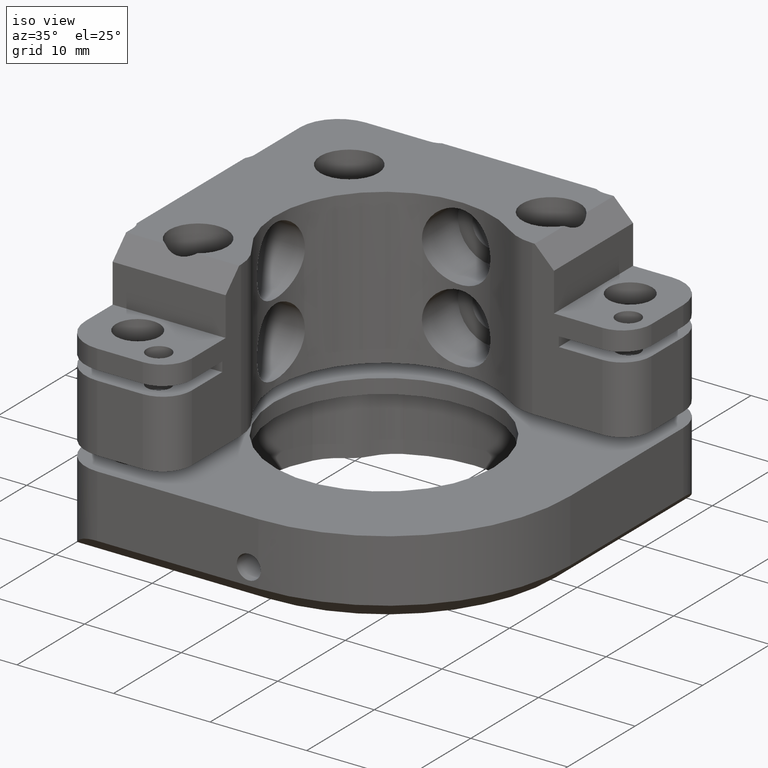
[diagram: clean part render]
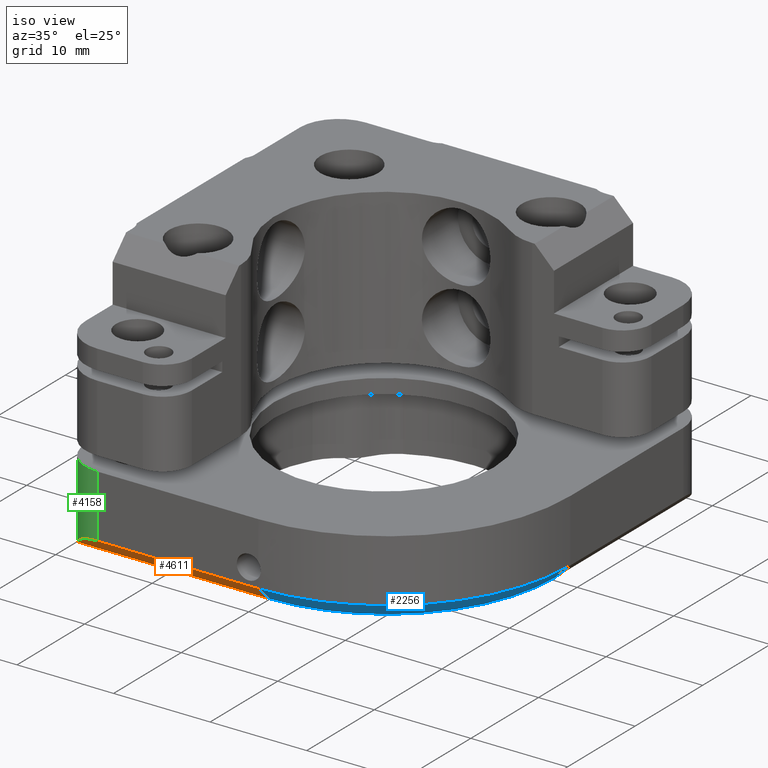
[diagram: same view with three faces highlighted in distinct colors, each labeled with its STEP entity id]
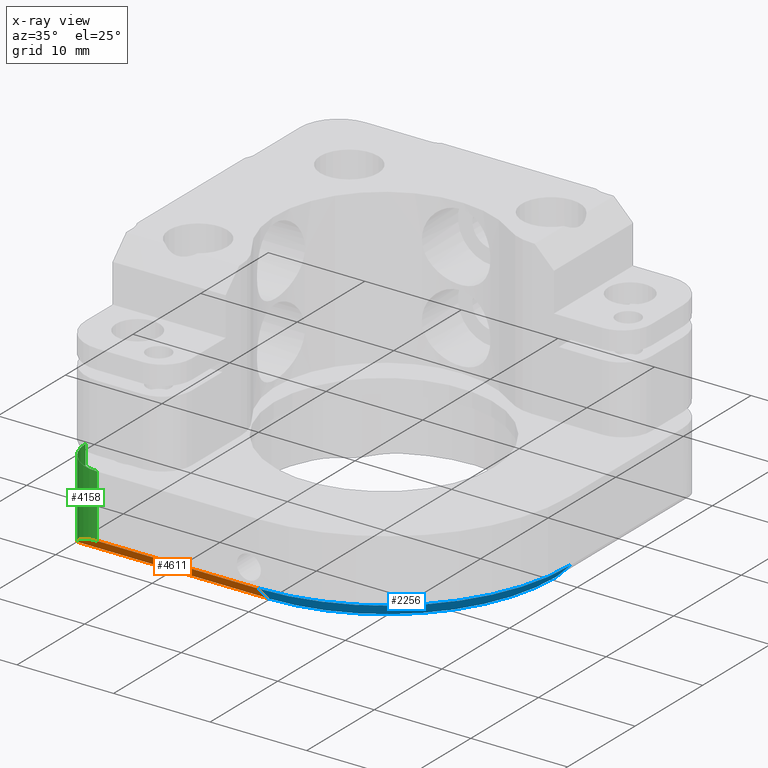
[diagram: x-ray of the same camera — body ghosted, the three highlighted faces saturated]
A machine part, iso view with three faces highlighted in distinct colors.
The next image is the same camera in x-ray (body ghosted, the three faces saturated) — at least one of them is partly hidden behind the body in this view.
Their STEP definitions:

[orange] entity #4611 — the highlighted planar face has unit normal (0, -0.7071, -0.7071).
#124 = CARTESIAN_POINT ( 'NONE',  ( -18.82249899919919756, -18.50000000000000000, 0.000000000000000000 ) ) ;
#169 = VECTOR ( 'NONE', #4402, 1000.000000000000000 ) ;
#299 = ORIENTED_EDGE ( 'NONE', *, *, #2804, .T. ) ;
#329 = CARTESIAN_POINT ( 'NONE',  ( -18.05002778162679533, -19.46481624151199696, 0.9648162415120019597 ) ) ;
#503 = ORIENTED_EDGE ( 'NONE', *, *, #1593, .F. ) ;
#564 = VECTOR ( 'NONE', #4710, 1000.000000000000000 ) ;
#721 = LINE ( 'NONE', #983, #169 ) ;
#786 = LINE ( 'NONE', #1147, #2990 ) ;
#963 =( BOUNDED_CURVE ( )  B_SPLINE_CURVE ( 3, ( #1416, #329, #4708, #1001 ),
 .UNSPECIFIED., .F., .F. ) 
 B_SPLINE_CURVE_WITH_KNOTS ( ( 4, 4 ),
 ( 5.387520513321720550, 6.283185307179586232 ),
 .UNSPECIFIED. ) 
 CURVE ( )  GEOMETRIC_REPRESENTATION_ITEM ( )  RATIONAL_B_SPLINE_CURVE ( ( 1.000000000000000000, 0.9342585459106647061, 0.9342585459106647061, 1.000000000000000000 ) ) 
 REPRESENTATION_ITEM ( '' )  );
#983 = CARTESIAN_POINT ( 'NONE',  ( 1.000000000000000000, -20.00000000000000000, 1.500000000000000000 ) ) ;
#1001 = CARTESIAN_POINT ( 'NONE',  ( -15.69999999999999929, -20.00000000000000000, 1.499999999999999778 ) ) ;
#1147 = CARTESIAN_POINT ( 'NONE',  ( 1.000000000000000000, -18.50000000000000000, 0.000000000000000000 ) ) ;
#1149 = EDGE_LOOP ( 'NONE', ( #4488, #299, #503, #4648 ) ) ;
#1333 = VERTEX_POINT ( 'NONE', #3215 ) ;
#1416 = CARTESIAN_POINT ( 'NONE',  ( -18.82249899919919756, -18.50000000000000000, 0.000000000000000000 ) ) ;
#1593 = EDGE_CURVE ( 'NONE', #4594, #4467, #963, .T. ) ;
#1676 = DIRECTION ( 'NONE',  ( 0.000000000000000000, -0.7071067811865470176, -0.7071067811865480168 ) ) ;
#1936 = VERTEX_POINT ( 'NONE', #4555 ) ;
#2249 = DIRECTION ( 'NONE',  ( -0.000000000000000000, -0.7071067811865480168, 0.7071067811865470176 ) ) ;
#2707 = FACE_OUTER_BOUND ( 'NONE', #1149, .T. ) ;
#2726 = DIRECTION ( 'NONE',  ( 0.000000000000000000, 0.7071067811865480168, -0.7071067811865470176 ) ) ;
#2804 = EDGE_CURVE ( 'NONE', #1333, #4467, #721, .T. ) ;
#2857 = LINE ( 'NONE', #4031, #564 ) ;
#2990 = VECTOR ( 'NONE', #2249, 1000.000000000000000 ) ;
#3143 = CARTESIAN_POINT ( 'NONE',  ( 1.000000000000000000, -18.50000000000000000, 0.000000000000000000 ) ) ;
#3215 = CARTESIAN_POINT ( 'NONE',  ( 0.9999999999999991118, -20.00000000000000000, 1.500000000000000000 ) ) ;
#3352 = CARTESIAN_POINT ( 'NONE',  ( -15.69999999999999929, -20.00000000000000000, 1.499999999999999778 ) ) ;
#4031 = CARTESIAN_POINT ( 'NONE',  ( 1.000000000000000000, -18.50000000000000000, 0.000000000000000000 ) ) ;
#4077 = AXIS2_PLACEMENT_3D ( 'NONE', #3143, #1676, #2726 ) ;
#4343 = EDGE_CURVE ( 'NONE', #1936, #4594, #2857, .T. ) ;
#4402 = DIRECTION ( 'NONE',  ( -1.000000000000000000, -0.000000000000000000, -0.000000000000000000 ) ) ;
#4467 = VERTEX_POINT ( 'NONE', #3352 ) ;
#4488 = ORIENTED_EDGE ( 'NONE', *, *, #4567, .T. ) ;
#4555 = CARTESIAN_POINT ( 'NONE',  ( 1.000000000000000444, -18.50000000000000000, 0.000000000000000000 ) ) ;
#4567 = EDGE_CURVE ( 'NONE', #1936, #1333, #786, .T. ) ;
#4594 = VERTEX_POINT ( 'NONE', #124 ) ;
#4611 = ADVANCED_FACE ( 'NONE', ( #2707 ), #4647, .T. ) ;
#4647 = PLANE ( 'NONE',  #4077 ) ;
#4648 = ORIENTED_EDGE ( 'NONE', *, *, #4343, .F. ) ;
#4708 = CARTESIAN_POINT ( 'NONE',  ( -16.93595394811584143, -20.00000000000000000, 1.499999999999999556 ) ) ;
#4710 = DIRECTION ( 'NONE',  ( -1.000000000000000000, 0.000000000000000000, -0.000000000000000000 ) ) ;

[blue] entity #2256 — the highlighted conical surface has half-angle 45 deg.
#220 = ORIENTED_EDGE ( 'NONE', *, *, #3267, .F. ) ;
#262 = CIRCLE ( 'NONE', #2991, 17.50000000000000000 ) ;
#468 = CARTESIAN_POINT ( 'NONE',  ( 18.50000000000000000, -1.000000000000000000, 0.000000000000000000 ) ) ;
#565 = CIRCLE ( 'NONE', #4299, 19.00000000000000000 ) ;
#603 = DIRECTION ( 'NONE',  ( 0.000000000000000000, 0.000000000000000000, 1.000000000000000000 ) ) ;
#625 = ORIENTED_EDGE ( 'NONE', *, *, #1363, .F. ) ;
#638 = LINE ( 'NONE', #979, #762 ) ;
#762 = VECTOR ( 'NONE', #2543, 1000.000000000000000 ) ;
#777 = ORIENTED_EDGE ( 'NONE', *, *, #4567, .F. ) ;
#786 = LINE ( 'NONE', #1147, #2990 ) ;
#891 = DIRECTION ( 'NONE',  ( -0.000000000000000000, 0.000000000000000000, 1.000000000000000000 ) ) ;
#918 = CARTESIAN_POINT ( 'NONE',  ( 1.000000000000000000, -1.000000000000000000, 1.500000000000000000 ) ) ;
#979 = CARTESIAN_POINT ( 'NONE',  ( 18.50000000000000000, -1.000000000000000000, 0.000000000000000000 ) ) ;
#1065 = EDGE_LOOP ( 'NONE', ( #220, #625, #777, #2450 ) ) ;
#1079 = CARTESIAN_POINT ( 'NONE',  ( 20.00000000000000000, -1.000000000000000666, 1.499999999999999556 ) ) ;
#1147 = CARTESIAN_POINT ( 'NONE',  ( 1.000000000000000000, -18.50000000000000000, 0.000000000000000000 ) ) ;
#1333 = VERTEX_POINT ( 'NONE', #3215 ) ;
#1363 = EDGE_CURVE ( 'NONE', #1333, #4336, #565, .T. ) ;
#1479 = EDGE_CURVE ( 'NONE', #1877, #1936, #262, .T. ) ;
#1824 = DIRECTION ( 'NONE',  ( 1.000000000000000000, 0.000000000000000000, 0.000000000000000000 ) ) ;
#1877 = VERTEX_POINT ( 'NONE', #468 ) ;
#1936 = VERTEX_POINT ( 'NONE', #4555 ) ;
#2249 = DIRECTION ( 'NONE',  ( -0.000000000000000000, -0.7071067811865480168, 0.7071067811865470176 ) ) ;
#2256 = ADVANCED_FACE ( 'NONE', ( #4228 ), #3443, .T. ) ;
#2258 = DIRECTION ( 'NONE',  ( 0.000000000000000000, -0.000000000000000000, -1.000000000000000000 ) ) ;
#2374 = DIRECTION ( 'NONE',  ( 1.000000000000000000, 0.000000000000000000, 0.000000000000000000 ) ) ;
#2450 = ORIENTED_EDGE ( 'NONE', *, *, #1479, .F. ) ;
#2543 = DIRECTION ( 'NONE',  ( -0.7071067811865480168, 0.000000000000000000, -0.7071067811865470176 ) ) ;
#2990 = VECTOR ( 'NONE', #2249, 1000.000000000000000 ) ;
#2991 = AXIS2_PLACEMENT_3D ( 'NONE', #4453, #2258, #1824 ) ;
#3179 = CARTESIAN_POINT ( 'NONE',  ( 1.000000000000000888, -1.000000000000000000, 1.500000001346172285 ) ) ;
#3215 = CARTESIAN_POINT ( 'NONE',  ( 0.9999999999999991118, -20.00000000000000000, 1.500000000000000000 ) ) ;
#3267 = EDGE_CURVE ( 'NONE', #4336, #1877, #638, .T. ) ;
#3443 = CONICAL_SURFACE ( 'NONE', #4673, 18.99999999865383060, 0.7853981625000001632 ) ;
#3555 = DIRECTION ( 'NONE',  ( 1.000000000000000000, 0.000000000000000000, 0.000000000000000000 ) ) ;
#4228 = FACE_OUTER_BOUND ( 'NONE', #1065, .T. ) ;
#4299 = AXIS2_PLACEMENT_3D ( 'NONE', #918, #603, #3555 ) ;
#4336 = VERTEX_POINT ( 'NONE', #1079 ) ;
#4453 = CARTESIAN_POINT ( 'NONE',  ( 1.000000000000000888, -1.000000000000000000, 0.000000000000000000 ) ) ;
#4555 = CARTESIAN_POINT ( 'NONE',  ( 1.000000000000000444, -18.50000000000000000, 0.000000000000000000 ) ) ;
#4567 = EDGE_CURVE ( 'NONE', #1936, #1333, #786, .T. ) ;
#4673 = AXIS2_PLACEMENT_3D ( 'NONE', #3179, #891, #2374 ) ;

[green] entity #4158 — the highlighted cylindrical surface (partial cylindrical patch) has radius 4 mm, axis along (0, 0, 1).
#124 = CARTESIAN_POINT ( 'NONE',  ( -18.82249899919919756, -18.50000000000000000, 0.000000000000000000 ) ) ;
#135 = ORIENTED_EDGE ( 'NONE', *, *, #1593, .T. ) ;
#192 = DIRECTION ( 'NONE',  ( 0.000000000000000000, 0.000000000000000000, -1.000000000000000000 ) ) ;
#221 = EDGE_LOOP ( 'NONE', ( #1318, #3167, #4115, #135, #1178 ) ) ;
#329 = CARTESIAN_POINT ( 'NONE',  ( -18.05002778162679533, -19.46481624151199696, 0.9648162415120019597 ) ) ;
#332 = CIRCLE ( 'NONE', #1801, 4.000000000000000000 ) ;
#741 = DIRECTION ( 'NONE',  ( 1.000000000000000000, 0.000000000000000000, 0.000000000000000000 ) ) ;
#770 = VECTOR ( 'NONE', #1062, 1000.000000000000000 ) ;
#771 = AXIS2_PLACEMENT_3D ( 'NONE', #2413, #1978, #3903 ) ;
#851 = DIRECTION ( 'NONE',  ( 1.000000000000000000, 0.000000000000000000, 0.000000000000000000 ) ) ;
#963 =( BOUNDED_CURVE ( )  B_SPLINE_CURVE ( 3, ( #1416, #329, #4708, #1001 ),
 .UNSPECIFIED., .F., .F. ) 
 B_SPLINE_CURVE_WITH_KNOTS ( ( 4, 4 ),
 ( 5.387520513321720550, 6.283185307179586232 ),
 .UNSPECIFIED. ) 
 CURVE ( )  GEOMETRIC_REPRESENTATION_ITEM ( )  RATIONAL_B_SPLINE_CURVE ( ( 1.000000000000000000, 0.9342585459106647061, 0.9342585459106647061, 1.000000000000000000 ) ) 
 REPRESENTATION_ITEM ( '' )  );
#1001 = CARTESIAN_POINT ( 'NONE',  ( -15.69999999999999929, -20.00000000000000000, 1.499999999999999778 ) ) ;
#1038 = AXIS2_PLACEMENT_3D ( 'NONE', #3417, #3871, #851 ) ;
#1062 = DIRECTION ( 'NONE',  ( 0.000000000000000000, 0.000000000000000000, 1.000000000000000000 ) ) ;
#1084 = CARTESIAN_POINT ( 'NONE',  ( -15.69999999999999929, -20.00000000000000000, 0.000000000000000000 ) ) ;
#1158 = EDGE_CURVE ( 'NONE', #3271, #1984, #1427, .T. ) ;
#1178 = ORIENTED_EDGE ( 'NONE', *, *, #3881, .T. ) ;
#1297 = EDGE_CURVE ( 'NONE', #1984, #4135, #1722, .T. ) ;
#1318 = ORIENTED_EDGE ( 'NONE', *, *, #1158, .T. ) ;
#1379 = CARTESIAN_POINT ( 'NONE',  ( -19.69999999999999929, -16.00000000000000000, 0.000000000000000000 ) ) ;
#1416 = CARTESIAN_POINT ( 'NONE',  ( -18.82249899919919756, -18.50000000000000000, 0.000000000000000000 ) ) ;
#1427 = CIRCLE ( 'NONE', #1038, 4.000000000000000000 ) ;
#1516 = DIRECTION ( 'NONE',  ( 0.000000000000000000, 0.000000000000000000, 1.000000000000000000 ) ) ;
#1593 = EDGE_CURVE ( 'NONE', #4594, #4467, #963, .T. ) ;
#1609 = CYLINDRICAL_SURFACE ( 'NONE', #771, 4.000000000000000000 ) ;
#1722 = LINE ( 'NONE', #1379, #4538 ) ;
#1743 = EDGE_CURVE ( 'NONE', #4135, #4594, #332, .T. ) ;
#1801 = AXIS2_PLACEMENT_3D ( 'NONE', #2660, #1516, #741 ) ;
#1978 = DIRECTION ( 'NONE',  ( 0.000000000000000000, 0.000000000000000000, 1.000000000000000000 ) ) ;
#1984 = VERTEX_POINT ( 'NONE', #3239 ) ;
#2413 = CARTESIAN_POINT ( 'NONE',  ( -15.69999999999999929, -16.00000000000000000, 0.000000000000000000 ) ) ;
#2466 = CARTESIAN_POINT ( 'NONE',  ( -15.69999999999999929, -20.00000000000000000, 8.000000000000000000 ) ) ;
#2660 = CARTESIAN_POINT ( 'NONE',  ( -15.69999999999999929, -16.00000000000000000, 0.000000000000000000 ) ) ;
#2779 = FACE_OUTER_BOUND ( 'NONE', #221, .T. ) ;
#3167 = ORIENTED_EDGE ( 'NONE', *, *, #1297, .T. ) ;
#3239 = CARTESIAN_POINT ( 'NONE',  ( -19.69999999999999929, -16.00000000000000000, 8.000000000000000000 ) ) ;
#3271 = VERTEX_POINT ( 'NONE', #2466 ) ;
#3352 = CARTESIAN_POINT ( 'NONE',  ( -15.69999999999999929, -20.00000000000000000, 1.499999999999999778 ) ) ;
#3417 = CARTESIAN_POINT ( 'NONE',  ( -15.69999999999999929, -16.00000000000000000, 8.000000000000000000 ) ) ;
#3492 = CARTESIAN_POINT ( 'NONE',  ( -19.69999999999999929, -16.00000000000000000, 0.000000000000000000 ) ) ;
#3871 = DIRECTION ( 'NONE',  ( -0.000000000000000000, -0.000000000000000000, -1.000000000000000000 ) ) ;
#3881 = EDGE_CURVE ( 'NONE', #4467, #3271, #4403, .T. ) ;
#3903 = DIRECTION ( 'NONE',  ( 1.000000000000000000, 0.000000000000000000, 0.000000000000000000 ) ) ;
#4115 = ORIENTED_EDGE ( 'NONE', *, *, #1743, .T. ) ;
#4135 = VERTEX_POINT ( 'NONE', #3492 ) ;
#4158 = ADVANCED_FACE ( 'NONE', ( #2779 ), #1609, .T. ) ;
#4403 = LINE ( 'NONE', #1084, #770 ) ;
#4467 = VERTEX_POINT ( 'NONE', #3352 ) ;
#4538 = VECTOR ( 'NONE', #192, 1000.000000000000000 ) ;
#4594 = VERTEX_POINT ( 'NONE', #124 ) ;
#4708 = CARTESIAN_POINT ( 'NONE',  ( -16.93595394811584143, -20.00000000000000000, 1.499999999999999556 ) ) ;